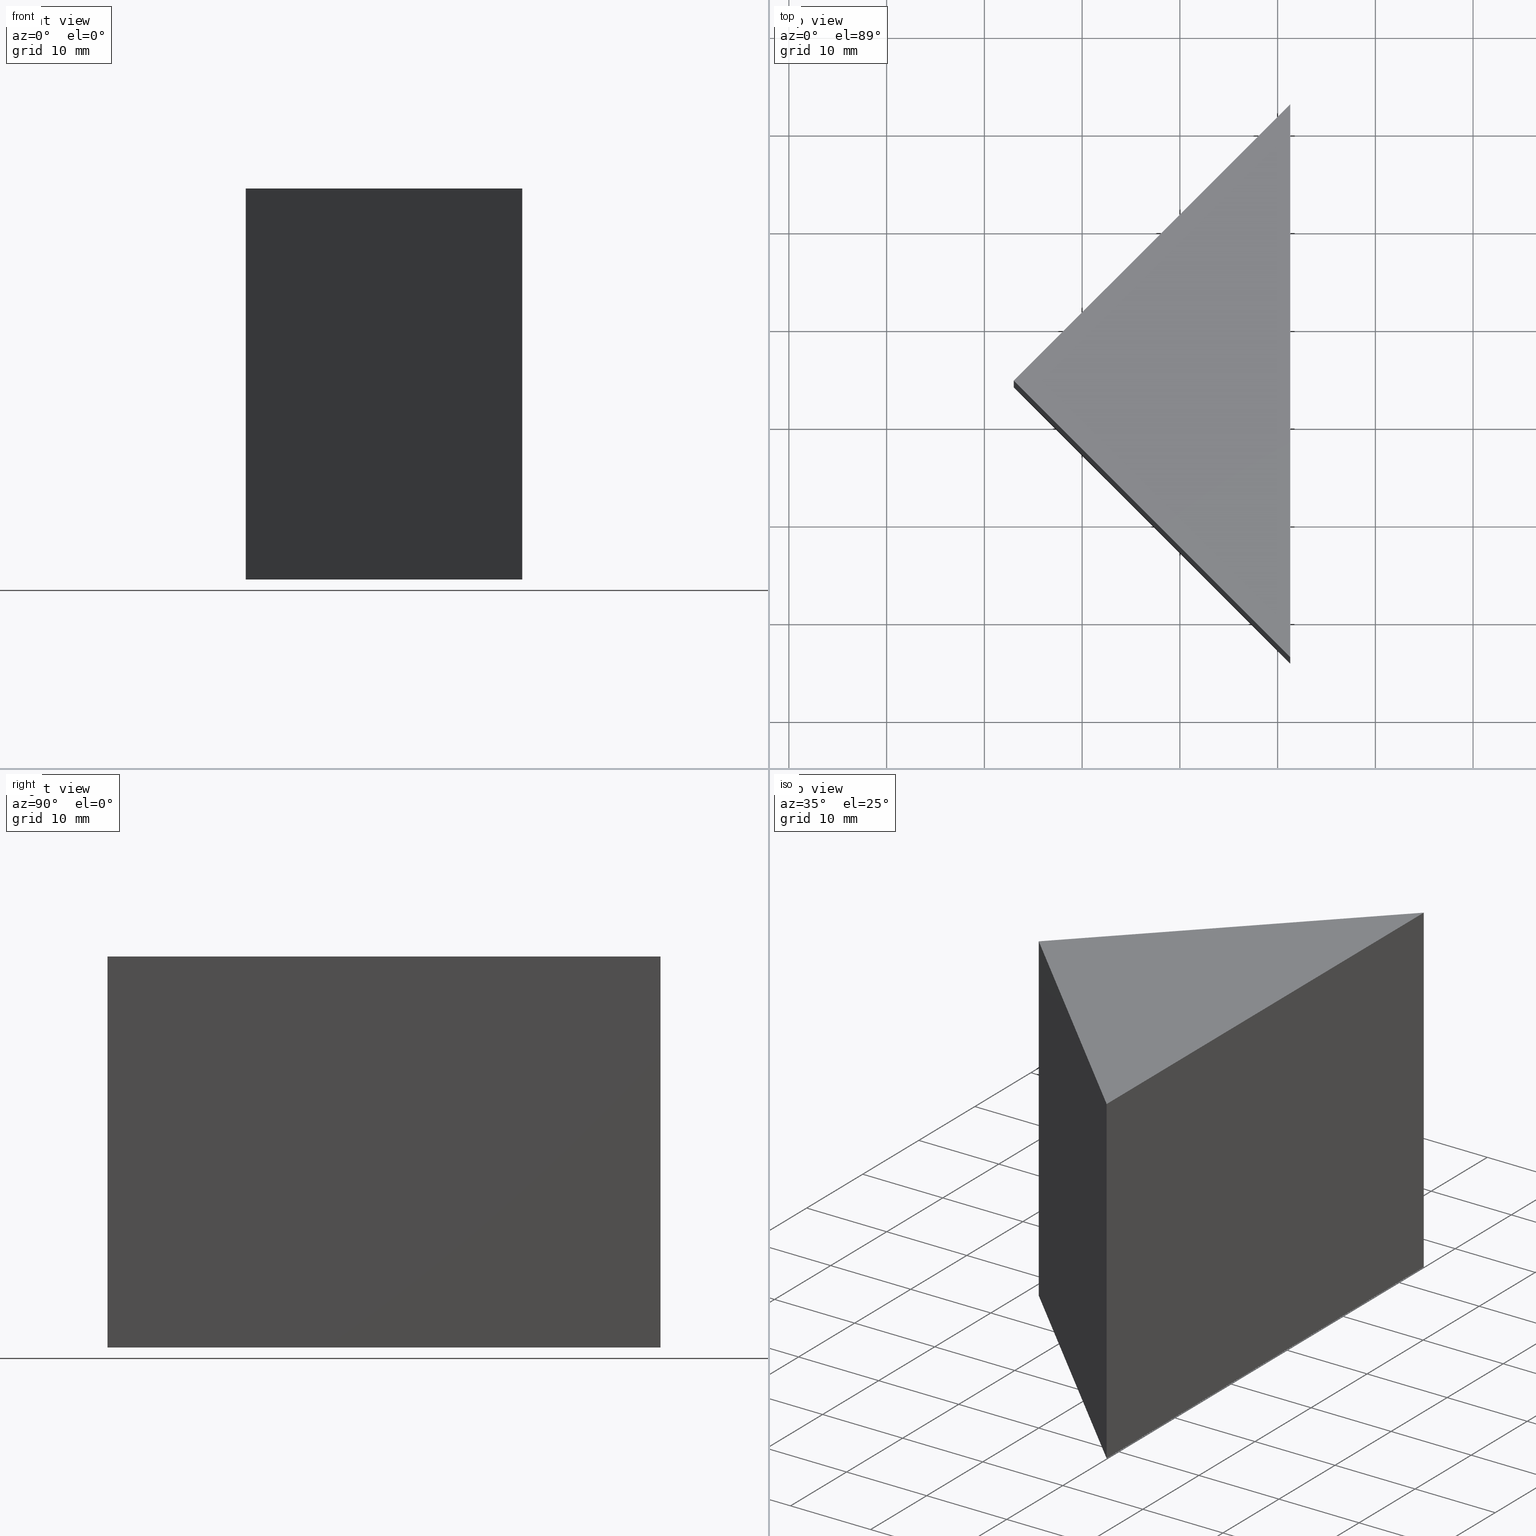
[diagram: canonical four-view strip — front | top / right | iso, engineering-drawing reading convention]
A machine part, canonical four-view strip (front | top / right | iso — engineering-drawing reading convention). The complete STEP part file that produces these views, byte-faithful:
ISO-10303-21;
HEADER;
FILE_DESCRIPTION (( 'STEP AP214' ),
    '1' );
FILE_NAME ('300007.STEP',
    '2019-08-12T08:25:17',
    ( '' ),
    ( '' ),
    'SwSTEP 2.0',
    'SolidWorks 2016',
    '' );
FILE_SCHEMA (( 'AUTOMOTIVE_DESIGN' ));
ENDSEC;

DATA;
#1 = FACE_OUTER_BOUND ( 'NONE', #131, .T. ) ;
#2 = SURFACE_STYLE_USAGE ( .BOTH. , #13 ) ;
#3 = DIRECTION ( 'NONE',  ( 0.0000000000000000000, 0.0000000000000000000, 1.000000000000000000 ) ) ;
#4 = VECTOR ( 'NONE', #55, 1000.000000000000000 ) ;
#5 = VECTOR ( 'NONE', #14, 1000.000000000000000 ) ;
#6 = ORIENTED_EDGE ( 'NONE', *, *, #144, .T. ) ;
#7 =( GEOMETRIC_REPRESENTATION_CONTEXT ( 3 ) GLOBAL_UNCERTAINTY_ASSIGNED_CONTEXT ( ( #57 ) ) GLOBAL_UNIT_ASSIGNED_CONTEXT ( ( #138, #100, #162 ) ) REPRESENTATION_CONTEXT ( 'NONE', 'WORKASPACE' ) );
#8 = LINE ( 'NONE', #113, #22 ) ;
#9 = DIRECTION ( 'NONE',  ( 0.0000000000000000000, 1.000000000000000000, 0.0000000000000000000 ) ) ;
#10 = FILL_AREA_STYLE_COLOUR ( '', #107 ) ;
#11 = DIRECTION ( 'NONE',  ( 0.7071067811865479100, 0.7071067811865472400, 0.0000000000000000000 ) ) ;
#12 = MECHANICAL_DESIGN_GEOMETRIC_PRESENTATION_REPRESENTATION (  '', ( #150 ), #19 ) ;
#13 = SURFACE_SIDE_STYLE ('',( #111 ) ) ;
#14 = DIRECTION ( 'NONE',  ( -0.0000000000000000000, -0.0000000000000000000, -1.000000000000000000 ) ) ;
#15 = ORIENTED_EDGE ( 'NONE', *, *, #75, .F. ) ;
#16 =( NAMED_UNIT ( * ) PLANE_ANGLE_UNIT ( ) SI_UNIT ( $, .RADIAN. ) );
#17 = AXIS2_PLACEMENT_3D ( 'NONE', #152, #154, #155 ) ;
#18 = VERTEX_POINT ( 'NONE', #36 ) ;
#19 =( GEOMETRIC_REPRESENTATION_CONTEXT ( 3 ) GLOBAL_UNCERTAINTY_ASSIGNED_CONTEXT ( ( #27 ) ) GLOBAL_UNIT_ASSIGNED_CONTEXT ( ( #167, #126, #89 ) ) REPRESENTATION_CONTEXT ( 'NONE', 'WORKASPACE' ) );
#20 = PRODUCT ( '300007', '300007', '', ( #66 ) ) ;
#21 = CARTESIAN_POINT ( 'NONE',  ( 591.2914660747533200, 172.5547877172118700, 40.00000000000000000 ) ) ;
#22 = VECTOR ( 'NONE', #9, 1000.000000000000000 ) ;
#23 = DIRECTION ( 'NONE',  ( 0.7071067811865475700, 0.7071067811865475700, -0.0000000000000000000 ) ) ;
#24 = CARTESIAN_POINT ( 'NONE',  ( 563.0071948272914100, 144.2705164697499600, 40.00000000000000000 ) ) ;
#25 = CARTESIAN_POINT ( 'NONE',  ( 563.0071948272914100, 144.2705164697499600, 0.0000000000000000000 ) ) ;
#26 = PRESENTATION_LAYER_ASSIGNMENT (  '', '', ( #82 ) ) ;
#27 = UNCERTAINTY_MEASURE_WITH_UNIT (LENGTH_MEASURE( 1.000000000000000100E-005 ), #167, 'distance_accuracy_value', 'NONE');
#28 = DIRECTION ( 'NONE',  ( -0.0000000000000000000, -0.0000000000000000000, -1.000000000000000000 ) ) ;
#29 = EDGE_CURVE ( 'NONE', #77, #145, #8, .T. ) ;
#30 = VECTOR ( 'NONE', #105, 1000.000000000000100 ) ;
#31 = ORIENTED_EDGE ( 'NONE', *, *, #132, .F. ) ;
#32 = FACE_OUTER_BOUND ( 'NONE', #62, .T. ) ;
#33 = ORIENTED_EDGE ( 'NONE', *, *, #146, .F. ) ;
#34 = AXIS2_PLACEMENT_3D ( 'NONE', #129, #103, #79 ) ;
#35 = ORIENTED_EDGE ( 'NONE', *, *, #146, .T. ) ;
#36 = CARTESIAN_POINT ( 'NONE',  ( 591.2914660747533200, 172.5547877172118700, 0.0000000000000000000 ) ) ;
#37 = COLOUR_RGB ( '',1.000000000000000000, 1.000000000000000000, 1.000000000000000000 ) ;
#38 = DIRECTION ( 'NONE',  ( -0.0000000000000000000, -0.0000000000000000000, -1.000000000000000000 ) ) ;
#39 = VECTOR ( 'NONE', #46, 1000.000000000000000 ) ;
#40 = FILL_AREA_STYLE ('',( #10 ) ) ;
#41 = PRODUCT_DEFINITION ( 'δ֪', '', #61, #45 ) ;
#42 = CARTESIAN_POINT ( 'NONE',  ( 591.2914660747533200, 115.9862452222880600, 40.00000000000000000 ) ) ;
#43 = DIRECTION ( 'NONE',  ( 0.0000000000000000000, 0.0000000000000000000, 1.000000000000000000 ) ) ;
#44 = CARTESIAN_POINT ( 'NONE',  ( 591.2914660747533200, 115.9862452222880600, 40.00000000000000000 ) ) ;
#45 = PRODUCT_DEFINITION_CONTEXT ( 'detailed design', #143, 'design' ) ;
#46 = DIRECTION ( 'NONE',  ( -0.7071067811865479100, -0.7071067811865472400, -0.0000000000000000000 ) ) ;
#47 = DIRECTION ( 'NONE',  ( 0.0000000000000000000, 1.000000000000000000, 0.0000000000000000000 ) ) ;
#48 =( GEOMETRIC_REPRESENTATION_CONTEXT ( 3 ) GLOBAL_UNCERTAINTY_ASSIGNED_CONTEXT ( ( #128 ) ) GLOBAL_UNIT_ASSIGNED_CONTEXT ( ( #127, #16, #153 ) ) REPRESENTATION_CONTEXT ( 'NONE', 'WORKASPACE' ) );
#49 = VECTOR ( 'NONE', #38, 1000.000000000000000 ) ;
#50 = PRESENTATION_STYLE_ASSIGNMENT (( #2 ) ) ;
#51 = EDGE_LOOP ( 'NONE', ( #149, #15, #91, #35 ) ) ;
#52 = EDGE_CURVE ( 'NONE', #59, #77, #69, .T. ) ;
#53 = AXIS2_PLACEMENT_3D ( 'NONE', #58, #43, #142 ) ;
#54 = SURFACE_STYLE_USAGE ( .BOTH. , #151 ) ;
#55 = DIRECTION ( 'NONE',  ( -0.7071067811865479100, -0.7071067811865472400, -0.0000000000000000000 ) ) ;
#56 = AXIS2_PLACEMENT_3D ( 'NONE', #44, #102, #3 ) ;
#57 = UNCERTAINTY_MEASURE_WITH_UNIT (LENGTH_MEASURE( 1.000000000000000100E-005 ), #138, 'distance_accuracy_value', 'NONE');
#58 = CARTESIAN_POINT ( 'NONE',  ( 0.0000000000000000000, 0.0000000000000000000, 0.0000000000000000000 ) ) ;
#59 = VERTEX_POINT ( 'NONE', #87 ) ;
#60 = AXIS2_PLACEMENT_3D ( 'NONE', #163, #136, #11 ) ;
#61 = PRODUCT_DEFINITION_FORMATION_WITH_SPECIFIED_SOURCE ( '�κ�', '', #20, .NOT_KNOWN. ) ;
#62 = EDGE_LOOP ( 'NONE', ( #148, #84, #124 ) ) ;
#63 = ADVANCED_BREP_SHAPE_REPRESENTATION ( '300007', ( #83, #53 ), #48 ) ;
#64 = LINE ( 'NONE', #140, #30 ) ;
#65 = ADVANCED_FACE ( 'NONE', ( #123 ), #164, .F. ) ;
#66 = PRODUCT_CONTEXT ( 'NONE', #68, 'mechanical' ) ;
#67 = PLANE ( 'NONE',  #17 ) ;
#68 = APPLICATION_CONTEXT ( 'automotive_design' ) ;
#69 = LINE ( 'NONE', #115, #141 ) ;
#70 = LINE ( 'NONE', #119, #5 ) ;
#71 = ORIENTED_EDGE ( 'NONE', *, *, #116, .T. ) ;
#72 = ORIENTED_EDGE ( 'NONE', *, *, #52, .T. ) ;
#73 = VECTOR ( 'NONE', #47, 1000.000000000000000 ) ;
#74 = ADVANCED_FACE ( 'NONE', ( #1 ), #166, .F. ) ;
#75 = EDGE_CURVE ( 'NONE', #145, #18, #158, .T. ) ;
#76 = PRESENTATION_STYLE_ASSIGNMENT (( #54 ) ) ;
#77 = VERTEX_POINT ( 'NONE', #125 ) ;
#78 = PLANE ( 'NONE',  #56 ) ;
#79 = DIRECTION ( 'NONE',  ( 1.000000000000000000, 0.0000000000000000000, 0.0000000000000000000 ) ) ;
#80 = CARTESIAN_POINT ( 'NONE',  ( 563.0071948272914100, 144.2705164697499600, 40.00000000000000000 ) ) ;
#81 = EDGE_LOOP ( 'NONE', ( #72, #122, #108 ) ) ;
#82 = STYLED_ITEM ( 'NONE', ( #76 ), #83 ) ;
#83 = MANIFOLD_SOLID_BREP ( '͹̨-����1', #114 ) ;
#84 = ORIENTED_EDGE ( 'NONE', *, *, #144, .F. ) ;
#85 = ADVANCED_FACE ( 'NONE', ( #98 ), #67, .T. ) ;
#86 = CARTESIAN_POINT ( 'NONE',  ( 591.2914660747533200, 115.9862452222880600, 0.0000000000000000000 ) ) ;
#87 = CARTESIAN_POINT ( 'NONE',  ( 563.0071948272914100, 144.2705164697499600, 40.00000000000000000 ) ) ;
#88 = EDGE_CURVE ( 'NONE', #120, #18, #133, .T. ) ;
#89 =( NAMED_UNIT ( * ) SI_UNIT ( $, .STERADIAN. ) SOLID_ANGLE_UNIT ( ) );
#90 = APPLICATION_PROTOCOL_DEFINITION ( 'draft international standard', 'automotive_design', 1998, #143 ) ;
#91 = ORIENTED_EDGE ( 'NONE', *, *, #29, .F. ) ;
#92 = CARTESIAN_POINT ( 'NONE',  ( 591.2914660747533200, 115.9862452222880600, 0.0000000000000000000 ) ) ;
#93 = VECTOR ( 'NONE', #28, 1000.000000000000000 ) ;
#94 = ORIENTED_EDGE ( 'NONE', *, *, #75, .T. ) ;
#95 = VERTEX_POINT ( 'NONE', #101 ) ;
#96 = ADVANCED_FACE ( 'NONE', ( #32 ), #117, .F. ) ;
#97 = DIRECTION ( 'NONE',  ( 0.7071067811865474600, -0.7071067811865474600, 0.0000000000000000000 ) ) ;
#98 = FACE_OUTER_BOUND ( 'NONE', #81, .T. ) ;
#99 = ORIENTED_EDGE ( 'NONE', *, *, #157, .T. ) ;
#100 =( NAMED_UNIT ( * ) PLANE_ANGLE_UNIT ( ) SI_UNIT ( $, .RADIAN. ) );
#101 = CARTESIAN_POINT ( 'NONE',  ( 563.0071948272914100, 144.2705164697499600, 0.0000000000000000000 ) ) ;
#102 = DIRECTION ( 'NONE',  ( -1.000000000000000000, 0.0000000000000000000, 0.0000000000000000000 ) ) ;
#103 = DIRECTION ( 'NONE',  ( -0.0000000000000000000, 0.0000000000000000000, 1.000000000000000000 ) ) ;
#104 = ORIENTED_EDGE ( 'NONE', *, *, #116, .F. ) ;
#105 = DIRECTION ( 'NONE',  ( 0.7071067811865474600, -0.7071067811865474600, 0.0000000000000000000 ) ) ;
#106 = CARTESIAN_POINT ( 'NONE',  ( 591.2914660747533200, 172.5547877172118700, 40.00000000000000000 ) ) ;
#107 = COLOUR_RGB ( '',1.000000000000000000, 1.000000000000000000, 1.000000000000000000 ) ;
#108 = ORIENTED_EDGE ( 'NONE', *, *, #132, .T. ) ;
#109 = SHAPE_DEFINITION_REPRESENTATION ( #112, #63 ) ;
#110 = EDGE_LOOP ( 'NONE', ( #6, #104, #31, #94 ) ) ;
#111 = SURFACE_STYLE_FILL_AREA ( #139 ) ;
#112 = PRODUCT_DEFINITION_SHAPE ( 'NONE', 'NONE',  #41 ) ;
#113 = CARTESIAN_POINT ( 'NONE',  ( 591.2914660747533200, 115.9862452222880600, 40.00000000000000000 ) ) ;
#114 = CLOSED_SHELL ( 'NONE', ( #74, #135, #65, #85, #96 ) ) ;
#115 = CARTESIAN_POINT ( 'NONE',  ( 563.0071948272914100, 144.2705164697499600, 40.00000000000000000 ) ) ;
#116 = EDGE_CURVE ( 'NONE', #59, #95, #70, .T. ) ;
#117 = PLANE ( 'NONE',  #34 ) ;
#118 = PRODUCT_RELATED_PRODUCT_CATEGORY ( 'part', '', ( #20 ) ) ;
#119 = CARTESIAN_POINT ( 'NONE',  ( 563.0071948272914100, 144.2705164697499600, 40.00000000000000000 ) ) ;
#120 = VERTEX_POINT ( 'NONE', #92 ) ;
#121 = APPLICATION_PROTOCOL_DEFINITION ( 'draft international standard', 'automotive_design', 1998, #68 ) ;
#122 = ORIENTED_EDGE ( 'NONE', *, *, #29, .T. ) ;
#123 = FACE_OUTER_BOUND ( 'NONE', #110, .T. ) ;
#124 = ORIENTED_EDGE ( 'NONE', *, *, #88, .F. ) ;
#125 = CARTESIAN_POINT ( 'NONE',  ( 591.2914660747533200, 115.9862452222880600, 40.00000000000000000 ) ) ;
#126 =( NAMED_UNIT ( * ) PLANE_ANGLE_UNIT ( ) SI_UNIT ( $, .RADIAN. ) );
#127 =( LENGTH_UNIT ( ) NAMED_UNIT ( * ) SI_UNIT ( .MILLI., .METRE. ) );
#128 = UNCERTAINTY_MEASURE_WITH_UNIT (LENGTH_MEASURE( 1.000000000000000100E-005 ), #127, 'distance_accuracy_value', 'NONE');
#129 = CARTESIAN_POINT ( 'NONE',  ( 0.0000000000000000000, 0.0000000000000000000, 0.0000000000000000000 ) ) ;
#130 = FACE_OUTER_BOUND ( 'NONE', #51, .T. ) ;
#131 = EDGE_LOOP ( 'NONE', ( #99, #33, #165, #71 ) ) ;
#132 = EDGE_CURVE ( 'NONE', #145, #59, #159, .T. ) ;
#133 = LINE ( 'NONE', #86, #73 ) ;
#134 = MECHANICAL_DESIGN_GEOMETRIC_PRESENTATION_REPRESENTATION (  '', ( #82 ), #7 ) ;
#135 = ADVANCED_FACE ( 'NONE', ( #130 ), #78, .F. ) ;
#136 = DIRECTION ( 'NONE',  ( 0.7071067811865472400, -0.7071067811865479100, 0.0000000000000000000 ) ) ;
#137 = LINE ( 'NONE', #25, #39 ) ;
#138 =( LENGTH_UNIT ( ) NAMED_UNIT ( * ) SI_UNIT ( .MILLI., .METRE. ) );
#139 = FILL_AREA_STYLE ('',( #169 ) ) ;
#140 = CARTESIAN_POINT ( 'NONE',  ( 563.0071948272914100, 144.2705164697499600, 0.0000000000000000000 ) ) ;
#141 = VECTOR ( 'NONE', #97, 1000.000000000000100 ) ;
#142 = DIRECTION ( 'NONE',  ( 1.000000000000000000, 0.0000000000000000000, 0.0000000000000000000 ) ) ;
#143 = APPLICATION_CONTEXT ( 'automotive_design' ) ;
#144 = EDGE_CURVE ( 'NONE', #18, #95, #137, .T. ) ;
#145 = VERTEX_POINT ( 'NONE', #106 ) ;
#146 = EDGE_CURVE ( 'NONE', #77, #120, #161, .T. ) ;
#147 = DIRECTION ( 'NONE',  ( -0.7071067811865474600, 0.7071067811865474600, 0.0000000000000000000 ) ) ;
#148 = ORIENTED_EDGE ( 'NONE', *, *, #157, .F. ) ;
#149 = ORIENTED_EDGE ( 'NONE', *, *, #88, .T. ) ;
#150 = STYLED_ITEM ( 'NONE', ( #50 ), #63 ) ;
#151 = SURFACE_SIDE_STYLE ('',( #156 ) ) ;
#152 = CARTESIAN_POINT ( 'NONE',  ( 0.0000000000000000000, 0.0000000000000000000, 40.00000000000000000 ) ) ;
#153 =( NAMED_UNIT ( * ) SI_UNIT ( $, .STERADIAN. ) SOLID_ANGLE_UNIT ( ) );
#154 = DIRECTION ( 'NONE',  ( -0.0000000000000000000, 0.0000000000000000000, 1.000000000000000000 ) ) ;
#155 = DIRECTION ( 'NONE',  ( 1.000000000000000000, 0.0000000000000000000, 0.0000000000000000000 ) ) ;
#156 = SURFACE_STYLE_FILL_AREA ( #40 ) ;
#157 = EDGE_CURVE ( 'NONE', #95, #120, #64, .T. ) ;
#158 = LINE ( 'NONE', #21, #49 ) ;
#159 = LINE ( 'NONE', #80, #4 ) ;
#160 = PRESENTATION_LAYER_ASSIGNMENT (  '', '', ( #150 ) ) ;
#161 = LINE ( 'NONE', #42, #93 ) ;
#162 =( NAMED_UNIT ( * ) SI_UNIT ( $, .STERADIAN. ) SOLID_ANGLE_UNIT ( ) );
#163 = CARTESIAN_POINT ( 'NONE',  ( 563.0071948272914100, 144.2705164697499600, 40.00000000000000000 ) ) ;
#164 = PLANE ( 'NONE',  #60 ) ;
#165 = ORIENTED_EDGE ( 'NONE', *, *, #52, .F. ) ;
#166 = PLANE ( 'NONE',  #168 ) ;
#167 =( LENGTH_UNIT ( ) NAMED_UNIT ( * ) SI_UNIT ( .MILLI., .METRE. ) );
#168 = AXIS2_PLACEMENT_3D ( 'NONE', #24, #23, #147 ) ;
#169 = FILL_AREA_STYLE_COLOUR ( '', #37 ) ;
ENDSEC;
END-ISO-10303-21;
